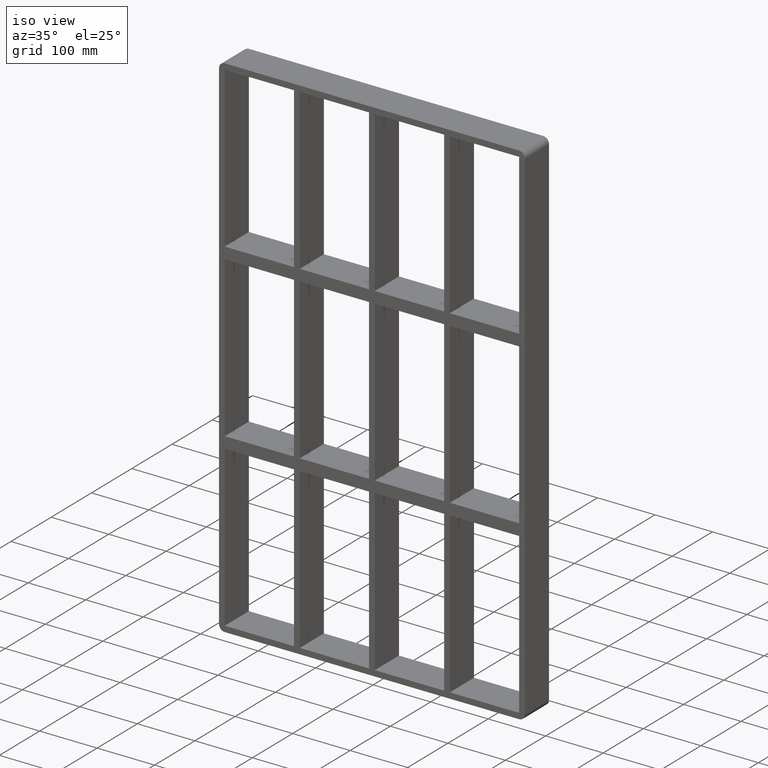
[diagram: clean part render]
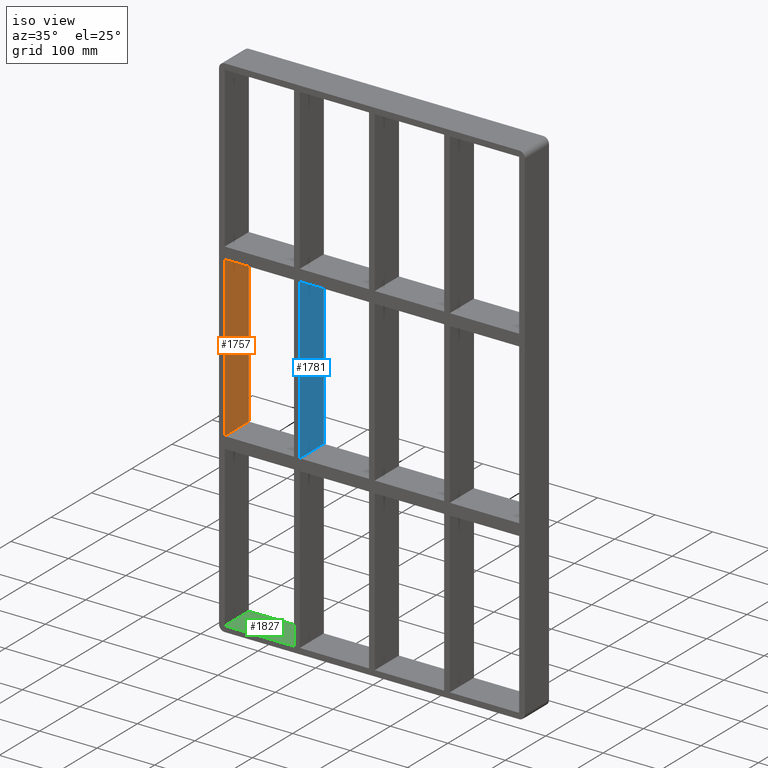
[diagram: same view with three faces highlighted in distinct colors, each labeled with its STEP entity id]
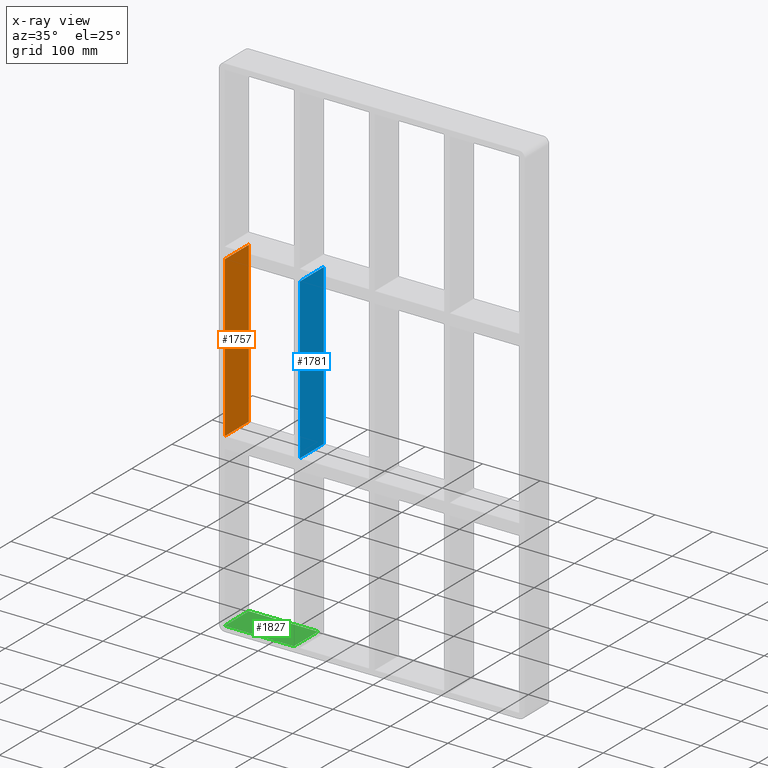
[diagram: x-ray of the same camera — body ghosted, the three highlighted faces saturated]
A machine part, iso view with three faces highlighted in distinct colors.
The next image is the same camera in x-ray (body ghosted, the three faces saturated) — at least one of them is partly hidden behind the body in this view.
Their STEP definitions:

[orange] entity #1757 — the highlighted planar face has unit normal (-1, 0, 0).
#83=CARTESIAN_POINT('',(-255.99999999999969,-3.0,138.99999999999056));
#84=VERTEX_POINT('',#83);
#91=CARTESIAN_POINT('',(-255.99999999999969,57.0,138.99999999999056));
#92=VERTEX_POINT('',#91);
#93=CARTESIAN_POINT('',(-255.99999999999997,57.000000000000007,138.99999999999056));
#94=DIRECTION('',(0.0,-1.0,0.0));
#95=VECTOR('',#94,60.000000000000007);
#96=LINE('',#93,#95);
#97=EDGE_CURVE('',#92,#84,#96,.T.);
#773=CARTESIAN_POINT('',(-255.99999999999969,57.0,-139.00000000000006));
#774=VERTEX_POINT('',#773);
#775=CARTESIAN_POINT('',(-255.99999999999997,57.0,138.99999999999062));
#776=DIRECTION('',(0.0,0.0,-1.0));
#777=VECTOR('',#776,277.99999999999068);
#778=LINE('',#775,#777);
#779=EDGE_CURVE('',#92,#774,#778,.T.);
#1475=CARTESIAN_POINT('',(-255.99999999999969,-3.0,-139.00000000000006));
#1476=VERTEX_POINT('',#1475);
#1483=CARTESIAN_POINT('',(-255.99999999999997,-3.0,-139.00000000000006));
#1484=DIRECTION('',(0.0,0.0,1.0));
#1485=VECTOR('',#1484,277.99999999999068);
#1486=LINE('',#1483,#1485);
#1487=EDGE_CURVE('',#1476,#84,#1486,.T.);
#1736=CARTESIAN_POINT('',(-255.99999999999997,-3.0,-139.00000000000006));
#1737=DIRECTION('',(0.0,1.0,0.0));
#1738=VECTOR('',#1737,60.000000000000007);
#1739=LINE('',#1736,#1738);
#1740=EDGE_CURVE('',#1476,#774,#1739,.T.);
#1746=CARTESIAN_POINT('',(-255.99999999999997,0.0,-437.0));
#1747=DIRECTION('',(-1.0,0.0,0.0));
#1748=DIRECTION('',(0.0,0.0,1.0));
#1749=AXIS2_PLACEMENT_3D('',#1746,#1747,#1748);
#1750=PLANE('',#1749);
#1751=ORIENTED_EDGE('',*,*,#97,.T.);
#1752=ORIENTED_EDGE('',*,*,#1487,.F.);
#1753=ORIENTED_EDGE('',*,*,#1740,.T.);
#1754=ORIENTED_EDGE('',*,*,#779,.F.);
#1755=EDGE_LOOP('',(#1751,#1752,#1753,#1754));
#1756=FACE_OUTER_BOUND('',#1755,.T.);
#1757=ADVANCED_FACE('',(#1756),#1750,.F.);

[blue] entity #1781 — the highlighted planar face has unit normal (1, 0, 0).
#123=CARTESIAN_POINT('',(-125.49999999999272,-3.0,138.99999999999062));
#124=VERTEX_POINT('',#123);
#131=CARTESIAN_POINT('',(-125.49999999999272,57.0,138.99999999999062));
#132=VERTEX_POINT('',#131);
#133=CARTESIAN_POINT('',(-125.49999999999272,57.0,138.99999999999062));
#134=DIRECTION('',(0.0,-1.0,0.0));
#135=VECTOR('',#134,60.0);
#136=LINE('',#133,#135);
#137=EDGE_CURVE('',#132,#124,#136,.T.);
#868=CARTESIAN_POINT('',(-125.49999999999272,57.0,-139.00000000000006));
#869=VERTEX_POINT('',#868);
#870=CARTESIAN_POINT('',(-125.49999999999272,57.0,138.99999999999056));
#871=DIRECTION('',(0.0,0.0,-1.0));
#872=VECTOR('',#871,277.99999999999068);
#873=LINE('',#870,#872);
#874=EDGE_CURVE('',#132,#869,#873,.T.);
#1434=CARTESIAN_POINT('',(-125.49999999999272,-3.0,-139.00000000000006));
#1435=VERTEX_POINT('',#1434);
#1442=CARTESIAN_POINT('',(-125.49999999999272,-3.0,138.99999999999056));
#1443=DIRECTION('',(0.0,0.0,-1.0));
#1444=VECTOR('',#1443,277.99999999999068);
#1445=LINE('',#1442,#1444);
#1446=EDGE_CURVE('',#124,#1435,#1445,.T.);
#1625=CARTESIAN_POINT('',(-125.49999999999272,-3.0,-139.00000000000006));
#1626=DIRECTION('',(0.0,1.0,0.0));
#1627=VECTOR('',#1626,60.0);
#1628=LINE('',#1625,#1627);
#1629=EDGE_CURVE('',#1435,#869,#1628,.T.);
#1770=CARTESIAN_POINT('',(-125.49999999999272,-3.0,437.0));
#1771=DIRECTION('',(1.0,0.0,0.0));
#1772=DIRECTION('',(0.0,0.0,-1.0));
#1773=AXIS2_PLACEMENT_3D('',#1770,#1771,#1772);
#1774=PLANE('',#1773);
#1775=ORIENTED_EDGE('',*,*,#137,.T.);
#1776=ORIENTED_EDGE('',*,*,#1446,.T.);
#1777=ORIENTED_EDGE('',*,*,#1629,.T.);
#1778=ORIENTED_EDGE('',*,*,#874,.F.);
#1779=EDGE_LOOP('',(#1775,#1776,#1777,#1778));
#1780=FACE_OUTER_BOUND('',#1779,.T.);
#1781=ADVANCED_FACE('',(#1780),#1774,.T.);

[green] entity #1827 — the highlighted planar face has unit normal (0, 0, -1).
#894=CARTESIAN_POINT('',(-256.0,57.0,-437.0));
#895=VERTEX_POINT('',#894);
#902=CARTESIAN_POINT('',(-135.50000000000131,57.0,-437.0));
#903=VERTEX_POINT('',#902);
#904=CARTESIAN_POINT('',(-256.0,57.0,-437.0));
#905=DIRECTION('',(1.0,0.0,0.0));
#906=VECTOR('',#905,120.49999999999866);
#907=LINE('',#904,#906);
#908=EDGE_CURVE('',#895,#903,#907,.T.);
#1559=CARTESIAN_POINT('',(-135.50000000000131,-3.0,-437.0));
#1560=VERTEX_POINT('',#1559);
#1567=CARTESIAN_POINT('',(-256.0,-3.0,-437.0));
#1568=VERTEX_POINT('',#1567);
#1569=CARTESIAN_POINT('',(-135.50000000000134,-3.0,-437.0));
#1570=DIRECTION('',(-1.0,0.0,0.0));
#1571=VECTOR('',#1570,120.49999999999866);
#1572=LINE('',#1569,#1571);
#1573=EDGE_CURVE('',#1560,#1568,#1572,.T.);
#1789=CARTESIAN_POINT('',(-135.50000000000131,-3.0,-437.0));
#1790=DIRECTION('',(0.0,1.0,0.0));
#1791=VECTOR('',#1790,60.000000000000007);
#1792=LINE('',#1789,#1791);
#1793=EDGE_CURVE('',#1560,#903,#1792,.T.);
#1811=CARTESIAN_POINT('',(256.0,0.0,-437.0));
#1812=DIRECTION('',(0.0,0.0,-1.0));
#1813=DIRECTION('',(-1.0,0.0,0.0));
#1814=AXIS2_PLACEMENT_3D('',#1811,#1812,#1813);
#1815=PLANE('',#1814);
#1816=ORIENTED_EDGE('',*,*,#1793,.T.);
#1817=ORIENTED_EDGE('',*,*,#908,.F.);
#1818=CARTESIAN_POINT('',(-255.99999999999997,-3.0,-437.0));
#1819=DIRECTION('',(0.0,1.0,0.0));
#1820=VECTOR('',#1819,60.0);
#1821=LINE('',#1818,#1820);
#1822=EDGE_CURVE('',#1568,#895,#1821,.T.);
#1823=ORIENTED_EDGE('',*,*,#1822,.F.);
#1824=ORIENTED_EDGE('',*,*,#1573,.F.);
#1825=EDGE_LOOP('',(#1816,#1817,#1823,#1824));
#1826=FACE_OUTER_BOUND('',#1825,.T.);
#1827=ADVANCED_FACE('',(#1826),#1815,.F.);